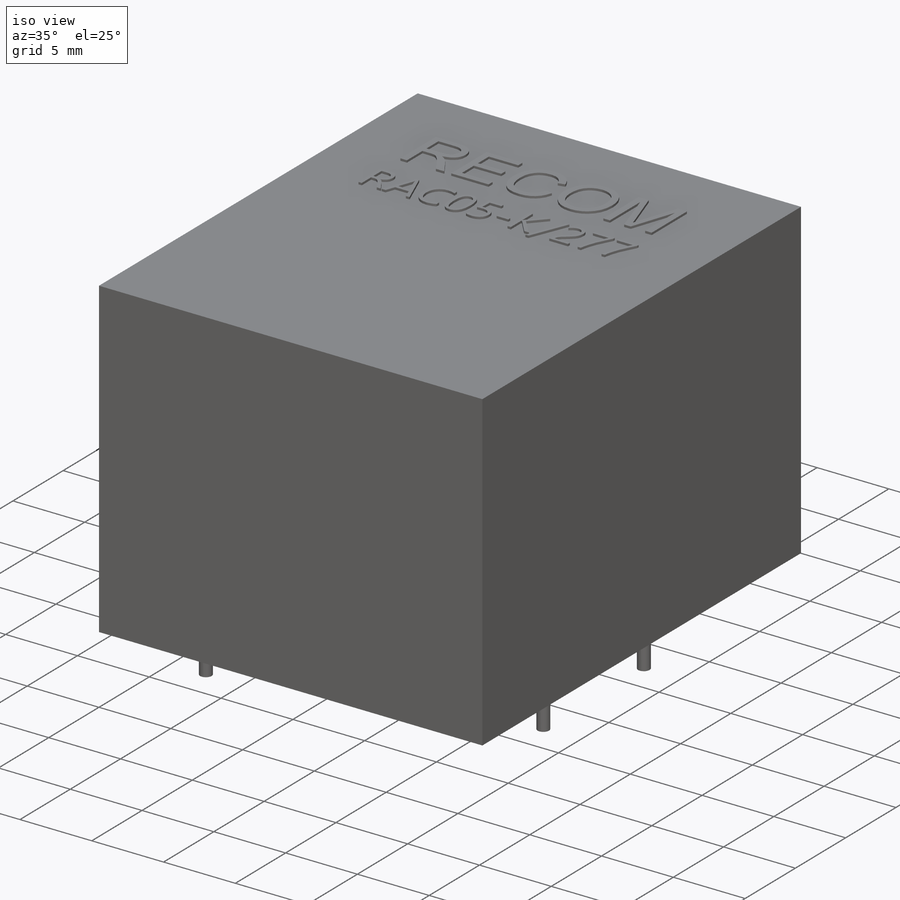
[diagram: iso view]
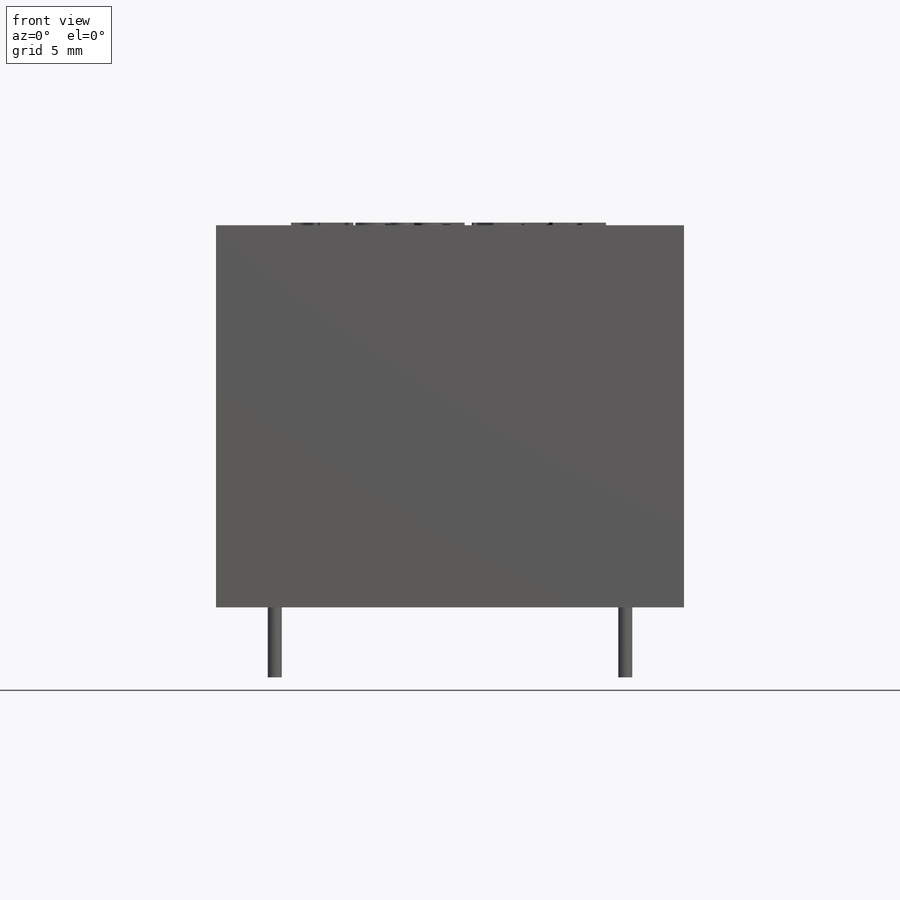
[diagram: front view]
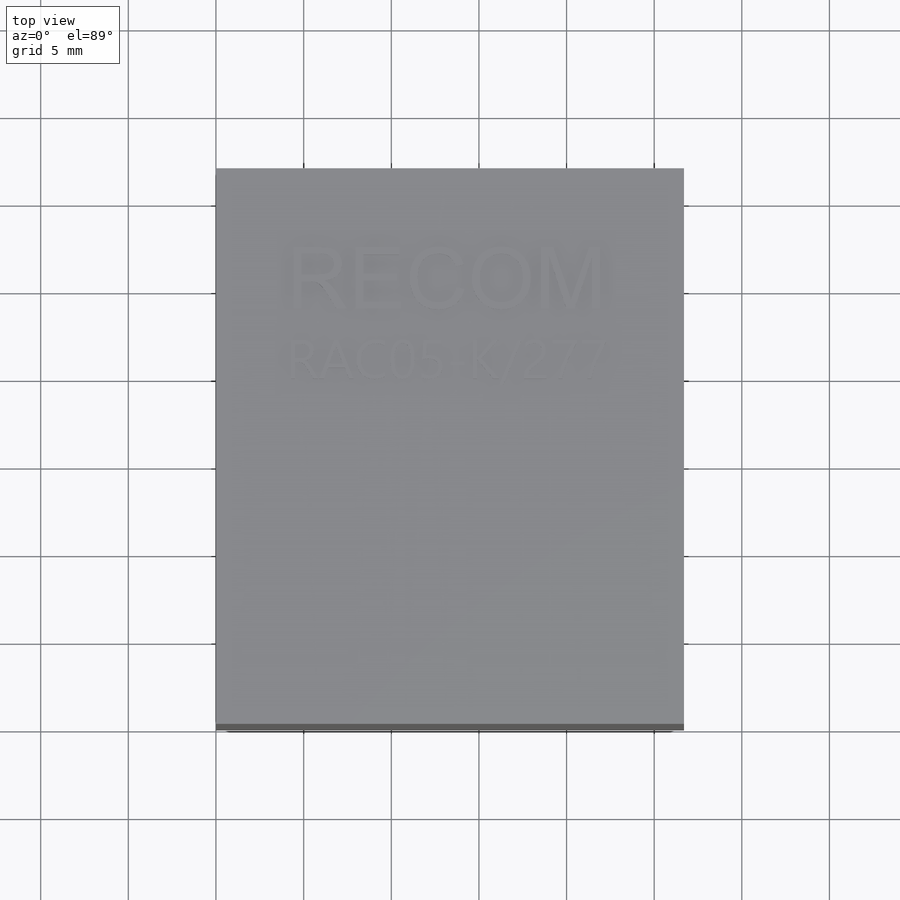
[diagram: top view]
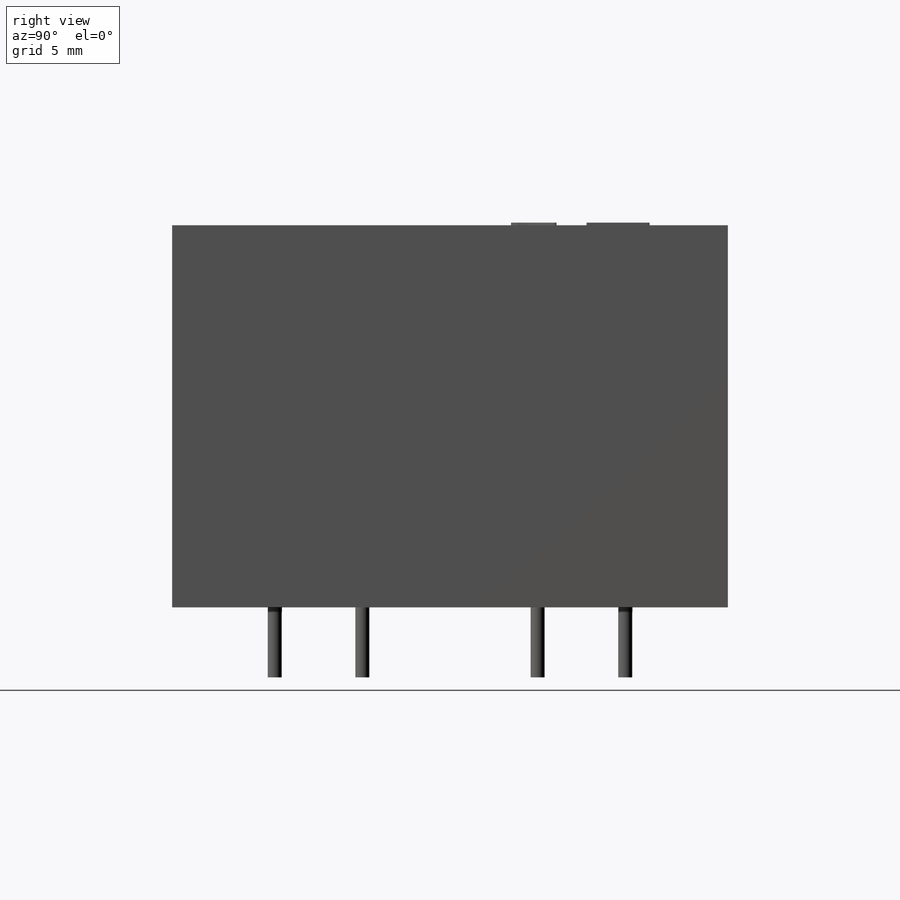
[diagram: right view]
SOLIDWORKS PART (.sldprt)
format: sldprt  version: not decoded by parser v0  size: 433,152 bytes
history: native  units: mm
features: sketch x4, extrude x4, material x1 (+13 scaffold rows collapsed)
feature tree (22):
  scaffold x13  (default folders/planes/origin — collapsed)
  material  "Material <not specified>"
  sketch  "Sketch1"  dims[D1=4.0mm D2=21.8mm D3=26.7mm]
  extrude  "Boss-Extrude1"  Depth=31.7mm
  sketch  "Sketch2"  dims[D7=0.8mm D8=0.8mm D9=0.8mm D10=0.8mm D1=3.35mm D2=5.85mm D3=20.0mm D4=20.0mm D5=10.85mm D6=10.0mm]
  extrude  "Boss-Extrude2"  Depth=4mm
  sketch  "Sketch3"  dims[D1=4.0mm D2=~20.272827mm]
  extrude  "Boss-Extrude3"  Depth=0.15mm
  sketch  "Sketch4"  dims[D1=12.0mm D2=4.0mm]
  extrude  "Boss-Extrude4"  Depth=0.15mm
decode coverage: 8 of 8 modeling features carry decoded parameters
note: ~ marks probable driven/reference dimensions
note: suppression state not decoded; provenance and decode notes live in map.json
